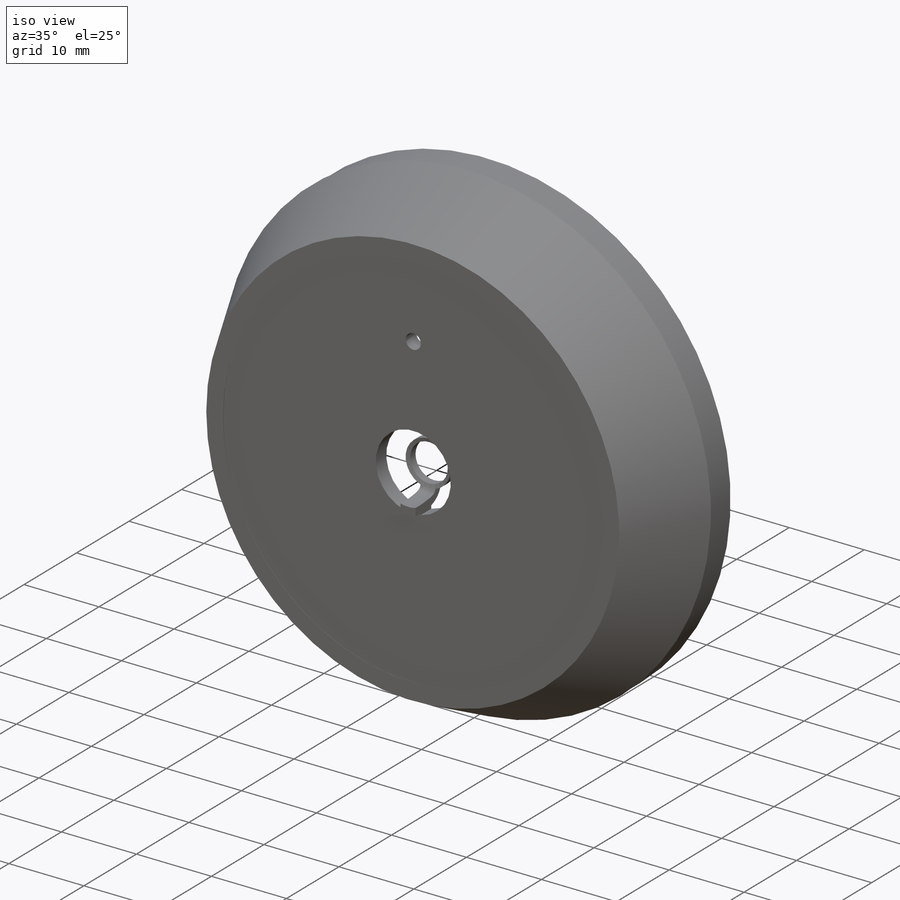
[diagram: iso view]
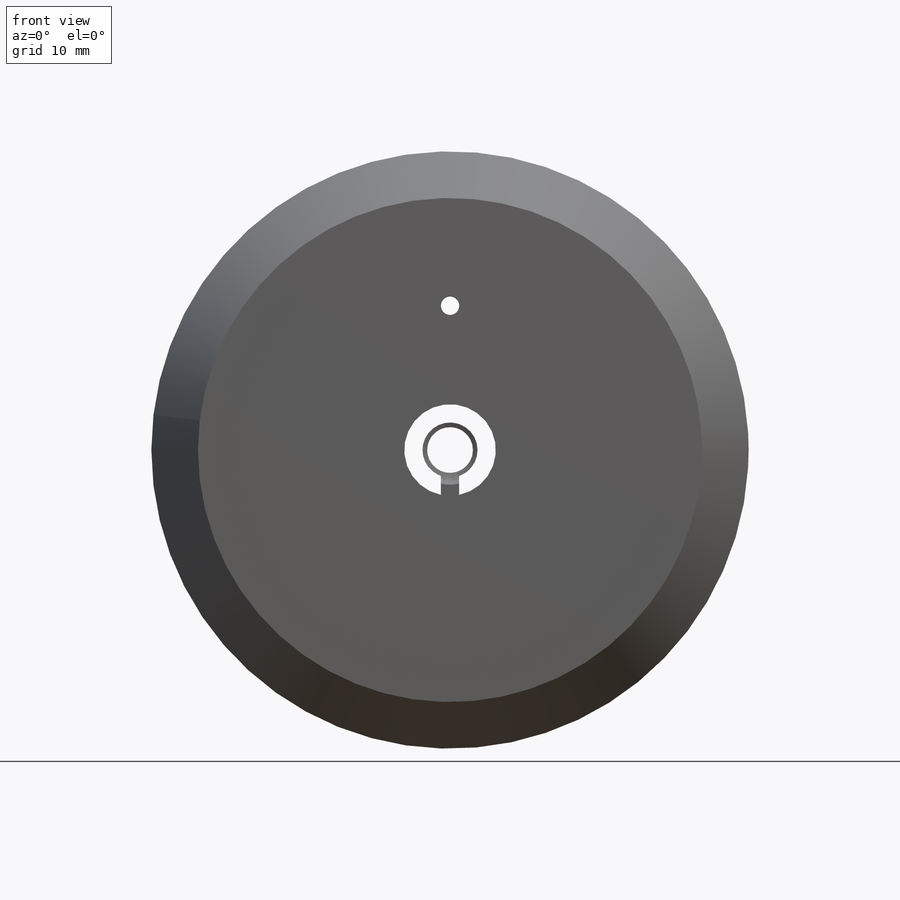
[diagram: front view]
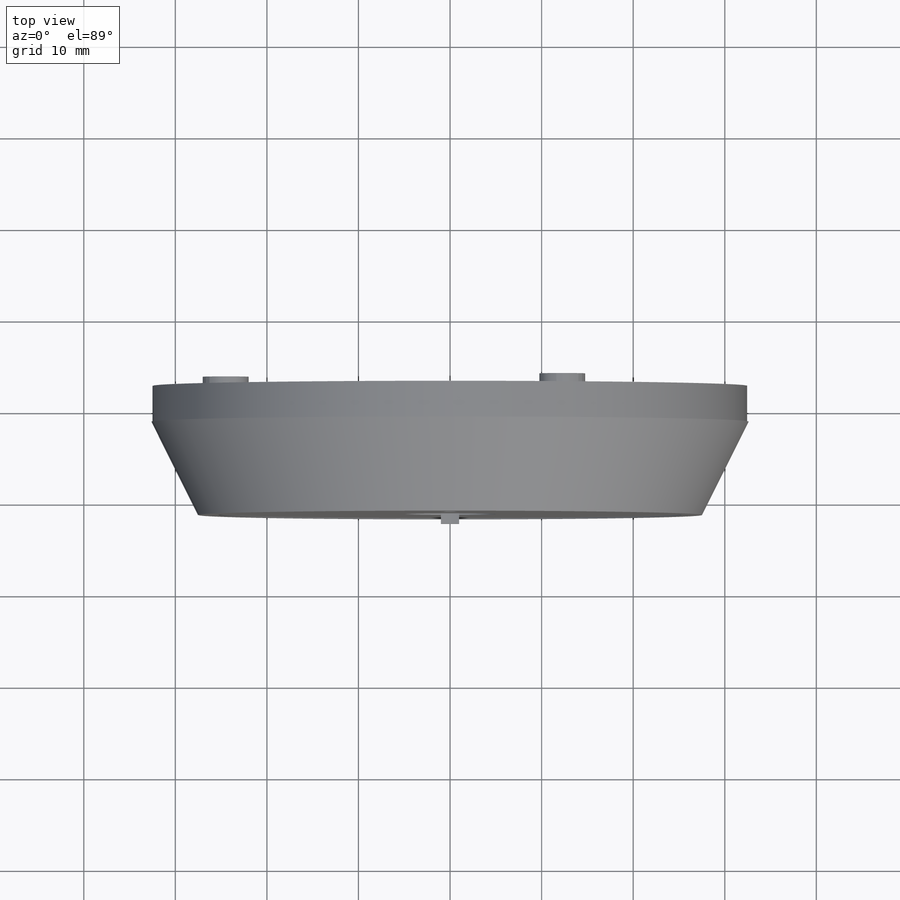
[diagram: top view]
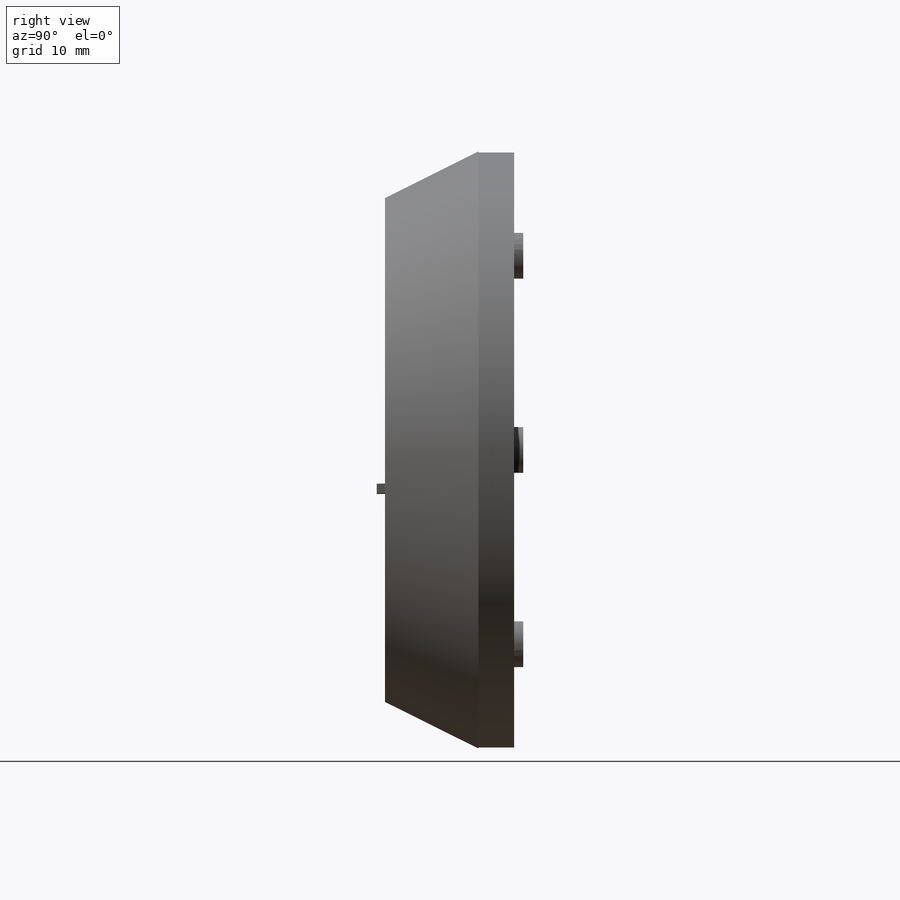
[diagram: right view]
SOLIDWORKS PART (.sldprt)
format: sldprt  version: not decoded by parser v0  size: 405,504 bytes
history: native  units: mm
features: sketch x7, cut_extrude x4, plane x3, material x1, revolve x1, extrude x1 (+9 scaffold rows collapsed)
feature tree (26):
  scaffold x9  (default folders/planes/origin — collapsed)
  material  "Material <sin especificar>"
  plane  "Alzado"
  plane  "Planta"
  plane  "Vista lateral"
  sketch  "Croquis1"  dims[c1.D1=70.0mm c1.D2=60.0mm c1.D3=5.0mm c2.D1=2.5mm c2.D2=1.5mm c2.D3=1.5mm c2.D4=25.0mm c2.D5=30.0mm c3.D1=7.0mm c3.D2=7.0mm c3.D3=25.0mm c3.D4=30.0mm c3.D5=4.0mm c3.D6=2.0mm c3.D7=2.0mm c3.D8=2.0mm c3.D9=1.0mm c3.D10=1.1mm c3.D11=1.0mm c3.D12=1.3mm c3.D13=1.0mm c3.D14=1.0mm c3.D15=1.0mm c3.D16=3.5mm]
  revolve  "Revolución3"  Angle=360deg
  sketch  "Croquis3"  dims[D1=1.0mm D2=~0.989143mm]
  cut_extrude  "Cortar-Extruir6"  Depth=11mm
  sketch  "Croquis4"  dims[c1.D6=5.0mm c1.D7=4.0mm c1.D9=5.0mm c1.D10=4.0mm c1.D12=5.0mm c1.D13=4.0mm c1.D14=~1.319984mm c1.D5=~1.366852mm c1.D1=20.0mm c1.D2=20.0mm c2.D1=16.25mm c2.D2=16.25mm c2.D3=~44.767035mm c2.D4=~47.070841mm c2.D5=~44.800943mm c3.D3=16.25mm c4.D3=~126.869898deg c4.D1=32.5mm c5.D1=120.0deg c5.D2=~18.168052mm c6.D2=120.0deg c6.D3=32.5mm c7.D3=120.0deg c8.D3=~22.805336mm c9.D3=120.0deg c9.D4=1.0mm c9.D5=2.5mm c9.D8=3.25mm c9.D11=3.5mm c9.D9=8.0mm c9.D10=26.5mm c10.D3=32.25mm c10.D4=8.0mm c10.D5=26.5mm c10.D1=32.25mm c10.D2=8.0mm c11.D1=24.5mm c11.D2=24.5mm c11.D3=24.5mm]
  extrude  "Saliente-Extruir1"  Depth=15mm
  sketch  "Croquis5"  dims[D1=~21.500004mm]
  cut_extrude  "Cortar-Extruir8"  Depth=22mm
  sketch  "Croquis8"  dims[D7=56.5mm D1=0.5mm D2=1.0mm D3=0.5mm D4=1.0mm D5=0.5mm D6=1.0mm]
  cut_extrude  "Cortar-Extruir17"  Depth=3.5mm
  sketch  "Croquis9"  dims[c1.D1=2.0mm c1.D2=2.0mm c2.D1=360.0deg c2.D3=0.1mm c2.D4=10.0mm c2.D7=0.0mm]
  sketch  "Croquis10"
  cut_extrude  "Cortar-Extruir18"  Depth=4.5mm
decode coverage: 12 of 13 modeling features carry decoded parameters
note: ~ marks probable driven/reference dimensions
note: suppression state not decoded; provenance and decode notes live in map.json
